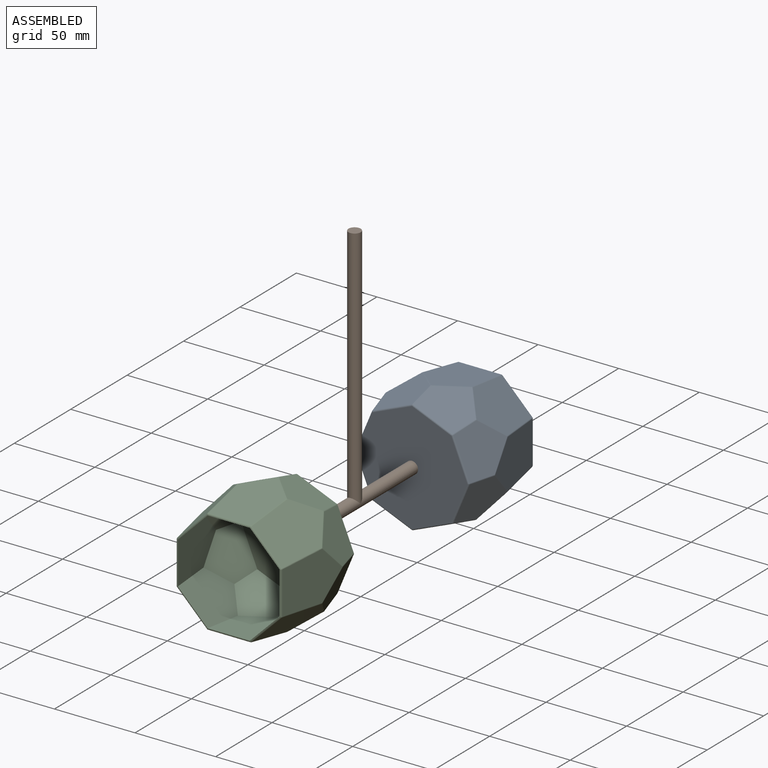
[diagram: assembled view]
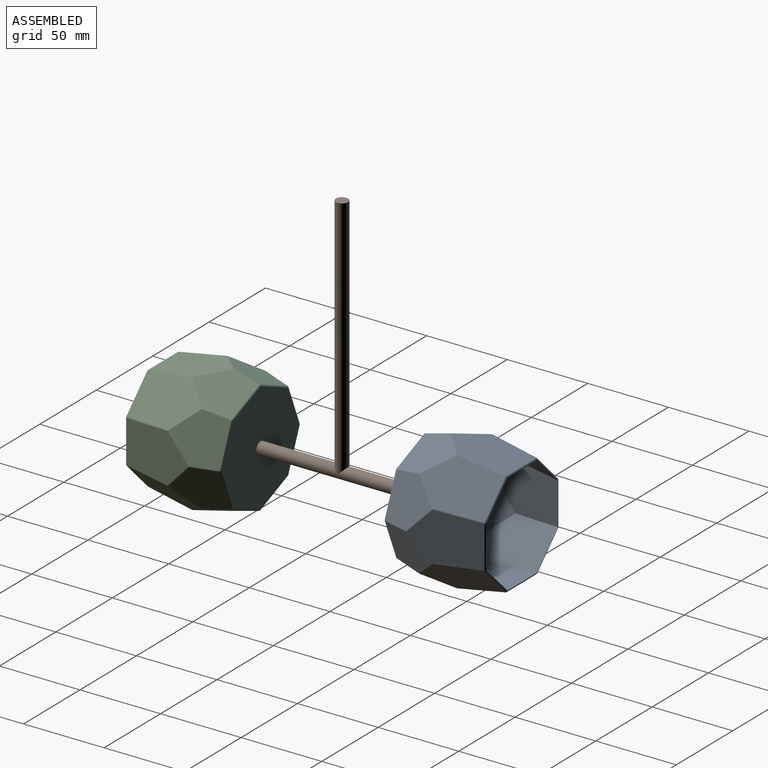
[diagram: assembled view, second angle]
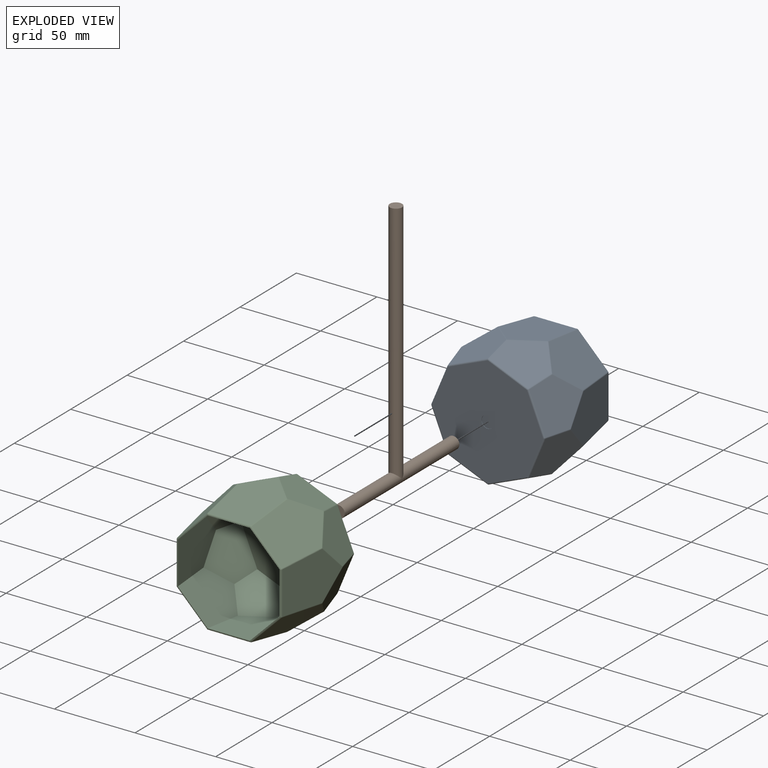
[diagram: exploded view]
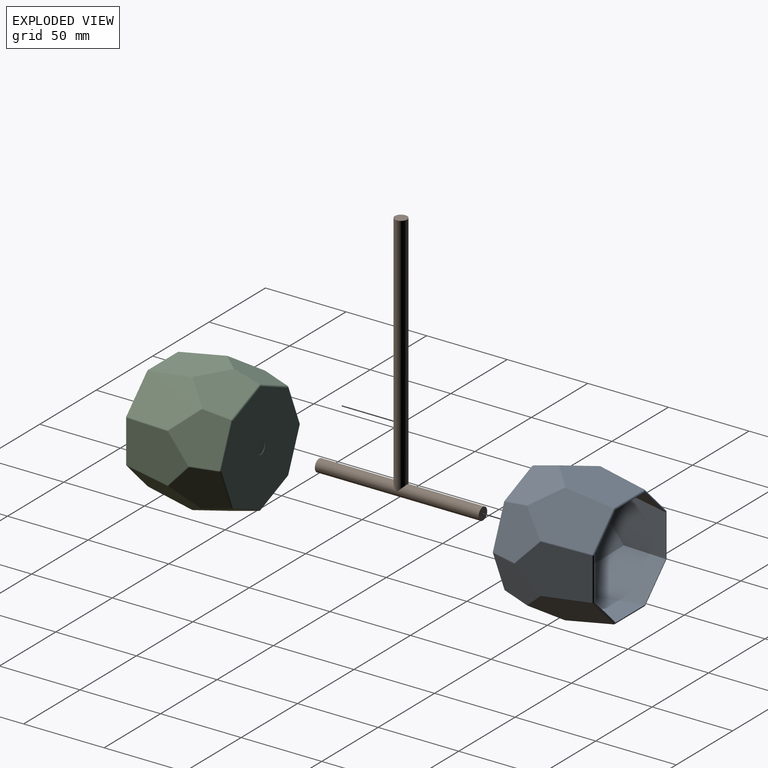
[diagram: exploded view, second angle]
ASSEMBLY  parts=3 mates=2
PART A: 117 faces, bbox 79.5x79.5x61 mm
  f0: plane 63.48x63.48mm, normal (0,0,1), area 34.1mm2, adj f18,f19,f20,f21,f22,f23,f24,f25
  f1: plane 43.06x30.15mm, normal (0,0.99,0.16), area 1038.6mm2, adj f99,f100,f109,f110,f114
  f2: plane 43.06x23.24mm, normal (0.7,0.7,0.16), area 1038.6mm2, adj f83,f97,f98,f108,f109
  f3: plane 43.06x30.15mm, normal (0.99,0,0.16), area 1038.6mm2, adj f66,f67,f82,f83,f84
  f4: plane 43.06x23.24mm, normal (0.7,-0.7,0.16), area 1038.6mm2, adj f43,f50,f51,f67,f68
  f5: plane 43.06x30.15mm, normal (0,-0.99,0.16), area 1038.6mm2, adj f35,f38,f39,f51,f52
  f6: plane 43.06x23.24mm, normal (-0.7,-0.7,0.16), area 1038.6mm2, adj f39,f40,f41,f53,f54
  f7: plane 43.06x30.15mm, normal (-0.99,0,0.16), area 1038.6mm2, adj f54,f55,f69,f70,f71
  f8: plane 43.06x23.24mm, normal (-0.7,0.7,0.16), area 1038.6mm2, adj f70,f85,f86,f100,f101
  f9: plane 30.39x27.42mm, normal (0.37,0.9,-0.24), area 680.7mm2, adj f96,f103,f108,f111,f114
  f10: plane 30.39x27.37mm, normal (0.9,0.37,-0.24), area 680.7mm2, adj f75,f82,f89,f96,f97
  f11: plane 30.39x27.42mm, normal (0.9,-0.37,-0.24), area 680.7mm2, adj f50,f59,f66,f74,f75
  f12: plane 30.39x27.37mm, normal (0.37,-0.9,-0.24), area 680.7mm2, adj f38,f42,f43,f58,f59
  f13: plane 30.39x27.42mm, normal (-0.37,-0.9,-0.24), area 680.7mm2, adj f35,f41,f42,f56,f57
  f14: plane 30.39x27.37mm, normal (-0.9,-0.37,-0.24), area 680.7mm2, adj f40,f55,f56,f72,f73
  f15: plane 30.39x27.42mm, normal (-0.9,0.37,-0.24), area 680.7mm2, adj f71,f72,f86,f87,f88
  f16: plane 30.39x27.37mm, normal (-0.37,0.9,-0.24), area 680.7mm2, adj f87,f101,f102,f110,f111
  f17: plane 68.86x68.86mm, normal (0,0,-1), area 3307.6mm2, adj f57,f58,f73,f74,f88,f89,f102,f103
  f18: plane 44.06x30.15mm, normal (0,-0.99,-0.16), area 1065.2mm2, adj f0,f19,f25,f26,f33
  f19: plane 44.06x23.31mm, normal (-0.7,-0.7,-0.16), area 1065.2mm2, adj f0,f18,f20,f26,f27
  f20: plane 44.06x30.15mm, normal (-0.99,0,-0.16), area 1065.2mm2, adj f0,f19,f21,f27,f28
  f21: plane 44.06x23.31mm, normal (-0.7,0.7,-0.16), area 1065.2mm2, adj f0,f20,f22,f28,f29
  f22: plane 44.06x30.15mm, normal (0,0.99,-0.16), area 1065.2mm2, adj f0,f21,f23,f29,f30
  f23: plane 44.06x23.31mm, normal (0.7,0.7,-0.16), area 1065.2mm2, adj f0,f22,f24,f30,f31
  f24: plane 44.06x30.15mm, normal (0.99,0,-0.16), area 1065.2mm2, adj f0,f23,f25,f31,f32
  f25: plane 44.06x23.31mm, normal (0.7,-0.7,-0.16), area 1065.2mm2, adj f0,f18,f24,f32,f33
  f26: plane 30.39x27.42mm, normal (-0.37,-0.9,0.24), area 680.7mm2, adj f18,f19,f27,f33,f34
  f27: plane 30.39x27.37mm, normal (-0.9,-0.37,0.24), area 680.7mm2, adj f19,f20,f26,f28,f34
  f28: plane 30.39x27.42mm, normal (-0.9,0.37,0.24), area 680.7mm2, adj f20,f21,f27,f29,f34
  f29: plane 30.39x27.37mm, normal (-0.37,0.9,0.24), area 680.7mm2, adj f21,f22,f28,f30,f34
  f30: plane 30.39x27.42mm, normal (0.37,0.9,0.24), area 680.7mm2, adj f22,f23,f29,f31,f34
  f31: plane 30.39x27.37mm, normal (0.9,0.37,0.24), area 680.7mm2, adj f23,f24,f30,f32,f34
  f32: plane 30.39x27.42mm, normal (0.9,-0.37,0.24), area 680.7mm2, adj f24,f25,f31,f33,f34
  f33: plane 30.39x27.37mm, normal (0.37,-0.9,0.24), area 680.7mm2, adj f18,f25,f26,f32,f34
  f34: plane 68.86x68.86mm, normal (0,0,1), area 3353.2mm2, adj f26,f27,f28,f29,f30,f31,f32,f33
  f35: cylinder r=1mm len=15.53mm, axis (-0.72,0.11,0.69), area 11.8mm2, adj f5,f13,f36,f37
  f36: sphere r=1mm, area 0.2mm2, adj f35,f39,f41
  f37: sphere r=1mm, area 0.2mm2, adj f35,f38,f42
  f38: cylinder r=1mm len=15.35mm, axis (-0.72,-0.11,-0.69), area 11.8mm2, adj f5,f12,f37,f44
  f39: cylinder r=1mm len=28.63mm, axis (-0.07,-0.16,-0.98), area 22.5mm2, adj f5,f6,f36,f45
  f40: cylinder r=1mm len=14.84mm, axis (-0.43,0.59,0.69), area 11.8mm2, adj f6,f14,f46,f47
  f41: cylinder r=1mm len=14.84mm, axis (-0.59,0.43,-0.69), area 11.8mm2, adj f6,f13,f36,f47
  f42: cylinder r=1mm len=15.96mm, axis (0,0.26,-0.97), area 12.6mm2, adj f12,f13,f37,f48
  f43: cylinder r=1mm len=14.84mm, axis (-0.59,-0.43,0.69), area 11.8mm2, adj f4,f12,f44,f49
  f44: sphere r=1mm, area 0.2mm2, adj f38,f43,f51
  f45: sphere r=1mm, area 0.7mm2, adj f39,f52,f53
  f46: sphere r=1mm, area 0.2mm2, adj f40,f54,f55
  f47: sphere r=1mm, area 0.2mm2, adj f40,f41,f56
  f48: sphere r=1mm, area 0.6mm2, adj f42,f57,f58
  f49: sphere r=1mm, area 0.2mm2, adj f43,f50,f59
  f50: cylinder r=1mm len=14.84mm, axis (-0.43,-0.59,-0.69), area 11.8mm2, adj f4,f11,f49,f60
  f51: cylinder r=1mm len=28.63mm, axis (0.07,-0.16,-0.98), area 22.5mm2, adj f4,f5,f44,f61
  f52: cylinder r=1mm len=26.3mm, axis (-1,0,0), area 37.1mm2, adj f0,f5,f45,f61
  f53: cylinder r=1mm len=19.29mm, axis (-0.71,0.71,0), area 37.1mm2, adj f0,f6,f45,f62
  f54: cylinder r=1mm len=28.63mm, axis (-0.16,-0.07,-0.98), area 22.5mm2, adj f6,f7,f46,f62
  f55: cylinder r=1mm len=15.35mm, axis (-0.11,0.72,-0.69), area 11.8mm2, adj f7,f14,f46,f63
  f56: cylinder r=1mm len=15.96mm, axis (0.18,0.18,-0.97), area 12.6mm2, adj f13,f14,f47,f64
  f57: cylinder r=1mm len=24.74mm, axis (-0.92,0.38,0), area 35mm2, adj f13,f17,f48,f64
  f58: cylinder r=1mm len=24.7mm, axis (-0.92,-0.38,0), area 35mm2, adj f12,f17,f48,f65
  f59: cylinder r=1mm len=15.96mm, axis (-0.18,0.18,-0.97), area 12.6mm2, adj f11,f12,f49,f65
  f60: sphere r=1mm, area 0.2mm2, adj f50,f66,f67
  f61: sphere r=1mm, area 0.7mm2, adj f51,f52,f68
  f62: sphere r=1mm, area 0.7mm2, adj f53,f54,f69
  f63: sphere r=1mm, area 0.2mm2, adj f55,f71,f72
  f64: sphere r=1mm, area 0.6mm2, adj f56,f57,f73
  f65: sphere r=1mm, area 0.6mm2, adj f58,f59,f74
  f66: cylinder r=1mm len=15.53mm, axis (-0.11,-0.72,0.69), area 11.8mm2, adj f3,f11,f60,f76
  f67: cylinder r=1mm len=28.63mm, axis (0.16,-0.07,-0.98), area 22.5mm2, adj f3,f4,f60,f77
  f68: cylinder r=1mm len=19.29mm, axis (-0.71,-0.71,0), area 37.1mm2, adj f0,f4,f61,f77
  f69: cylinder r=1mm len=26.3mm, axis (0,1,0), area 37.1mm2, adj f0,f7,f62,f78
  f70: cylinder r=1mm len=28.63mm, axis (-0.16,0.07,-0.98), area 22.5mm2, adj f7,f8,f78,f79
  f71: cylinder r=1mm len=15.53mm, axis (0.11,0.72,0.69), area 11.8mm2, adj f7,f15,f63,f79
  f72: cylinder r=1mm len=15.96mm, axis (0.26,0,-0.97), area 12.6mm2, adj f14,f15,f63,f80
  f73: cylinder r=1mm len=24.7mm, axis (-0.38,0.92,0), area 35mm2, adj f14,f17,f64,f80
  f74: cylinder r=1mm len=24.74mm, axis (-0.38,-0.92,0), area 35mm2, adj f11,f17,f65,f81
  f75: cylinder r=1mm len=15.96mm, axis (-0.26,0,-0.97), area 12.6mm2, adj f10,f11,f76,f81
  f76: sphere r=1mm, area 0.2mm2, adj f66,f75,f82
  f77: sphere r=1mm, area 0.7mm2, adj f67,f68,f84
  f78: sphere r=1mm, area 0.7mm2, adj f69,f70,f85
  f79: sphere r=1mm, area 0.2mm2, adj f70,f71,f86
  f80: sphere r=1mm, area 0.6mm2, adj f72,f73,f88
  f81: sphere r=1mm, area 0.6mm2, adj f74,f75,f89
  f82: cylinder r=1mm len=15.35mm, axis (0.11,-0.72,-0.69), area 11.8mm2, adj f3,f10,f76,f90
  f83: cylinder r=1mm len=28.63mm, axis (0.16,0.07,-0.98), area 22.5mm2, adj f2,f3,f90,f91
  f84: cylinder r=1mm len=26.3mm, axis (0,-1,0), area 37.1mm2, adj f0,f3,f77,f91
  f85: cylinder r=1mm len=19.29mm, axis (0.71,0.71,0), area 37.1mm2, adj f0,f8,f78,f92
  f86: cylinder r=1mm len=14.84mm, axis (0.43,0.59,-0.69), area 11.8mm2, adj f8,f15,f79,f93
  f87: cylinder r=1mm len=15.96mm, axis (0.18,-0.18,-0.97), area 12.6mm2, adj f15,f16,f93,f94
  f88: cylinder r=1mm len=24.74mm, axis (0.38,0.92,0), area 35mm2, adj f15,f17,f80,f94
  f89: cylinder r=1mm len=24.7mm, axis (0.38,-0.92,0), area 35mm2, adj f10,f17,f81,f95
  f90: sphere r=1mm, area 0.2mm2, adj f82,f83,f97
  f91: sphere r=1mm, area 0.7mm2, adj f83,f84,f98
  f92: sphere r=1mm, area 0.7mm2, adj f85,f99,f100
  f93: sphere r=1mm, area 0.2mm2, adj f86,f87,f101
  f94: sphere r=1mm, area 0.6mm2, adj f87,f88,f102
  f95: sphere r=1mm, area 0.6mm2, adj f89,f96,f103
  f96: cylinder r=1mm len=15.96mm, axis (-0.18,-0.18,-0.97), area 12.6mm2, adj f9,f10,f95,f104
  f97: cylinder r=1mm len=14.84mm, axis (0.43,-0.59,0.69), area 11.8mm2, adj f2,f10,f90,f104
  f98: cylinder r=1mm len=19.29mm, axis (0.71,-0.71,0), area 37.1mm2, adj f0,f2,f91,f105
  f99: cylinder r=1mm len=26.3mm, axis (1,0,0), area 37.1mm2, adj f0,f1,f92,f105
  f100: cylinder r=1mm len=28.63mm, axis (-0.07,0.16,-0.98), area 22.5mm2, adj f1,f8,f92,f106
  f101: cylinder r=1mm len=14.84mm, axis (0.59,0.43,0.69), area 11.8mm2, adj f8,f16,f93,f106
  f102: cylinder r=1mm len=24.7mm, axis (0.92,0.38,0), area 35mm2, adj f16,f17,f94,f107
  f103: cylinder r=1mm len=24.74mm, axis (0.92,-0.38,0), area 35mm2, adj f9,f17,f95,f107
  f104: sphere r=1mm, area 0.2mm2, adj f96,f97,f108
  f105: sphere r=1mm, area 0.7mm2, adj f98,f99,f109
  f106: sphere r=1mm, area 0.2mm2, adj f100,f101,f110
  f107: sphere r=1mm, area 0.6mm2, adj f102,f103,f111
  f108: cylinder r=1mm len=14.84mm, axis (0.59,-0.43,-0.69), area 11.8mm2, adj f2,f9,f104,f112
  f109: cylinder r=1mm len=28.63mm, axis (0.07,0.16,-0.98), area 22.5mm2, adj f1,f2,f105,f112
  f110: cylinder r=1mm len=15.35mm, axis (0.72,0.11,-0.69), area 11.8mm2, adj f1,f16,f106,f113
  f111: cylinder r=1mm len=15.96mm, axis (0,-0.26,-0.97), area 12.6mm2, adj f9,f16,f107,f113
  f112: sphere r=1mm, area 0.2mm2, adj f108,f109,f114
  f113: sphere r=1mm, area 0.2mm2, adj f110,f111,f114
  f114: cylinder r=1mm len=15.53mm, axis (0.72,-0.11,0.69), area 11.8mm2, adj f1,f9,f112,f113
  f115: cylinder r=3.81mm len=7.62mm, axis (0,0,-1), area 6.1mm2, adj f17,f116
  f116: plane 7.62x7.62mm, normal (0,0,-1), area 45.6mm2, adj f115
PART B: 5 faces, bbox 7.6x101.6x156.2 mm
  f0: cylinder r=3.81mm len=101.6mm, axis (0,1,0), area 2374.1mm2, adj f1,f2,f3
  f1: plane 7.62x7.62mm, normal (0,-1,0), area 45.6mm2, adj f0
  f2: plane 7.62x7.62mm, normal (0,1,0), area 45.6mm2, adj f0
  f3: cylinder r=3.81mm len=152.4mm, axis (0,0,-1), area 3590.2mm2, adj f0,f4
  f4: plane 7.62x7.62mm, normal (0,0,1), area 45.6mm2, adj f3
PART C: same geometry as A
PLACE A rot(axis=(-0.58,0.58,0.58),120deg) t=(-63.15,64.17,13.16)mm
PLACE B t=(-63.15,13.37,13.16)mm
PLACE C rot(axis=(1,0,0),90deg) t=(-63.15,-37.17,13.16)mm
MATE planar A.f115 <-> B.f0  axis (0,-1,0) through (-63.15,64.17,13.16)mm
MATE planar C.f115 <-> B.f0  axis (0,1,0) through (-63.15,-37.43,13.16)mm
